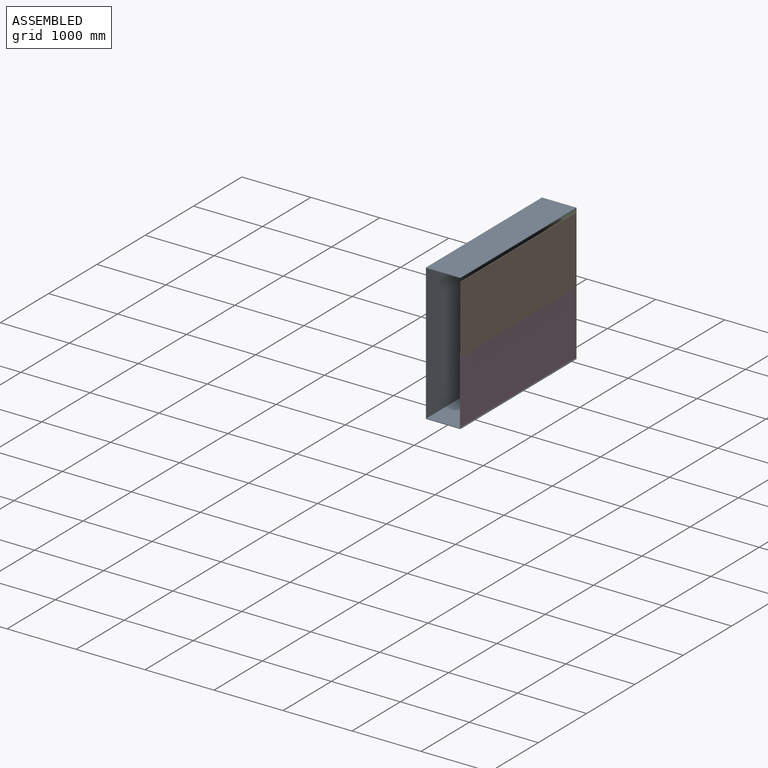
[diagram: assembled view]
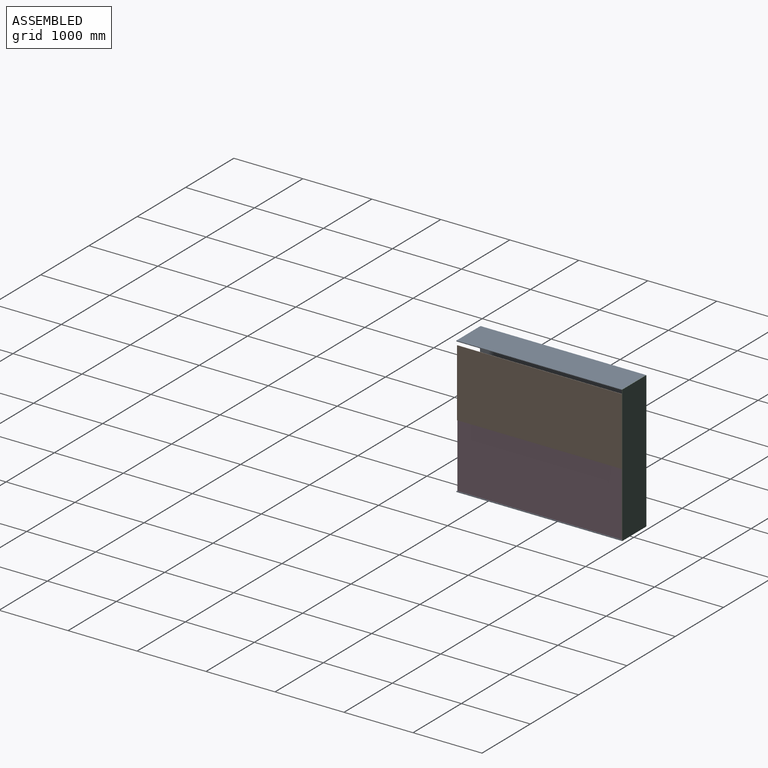
[diagram: assembled view, second angle]
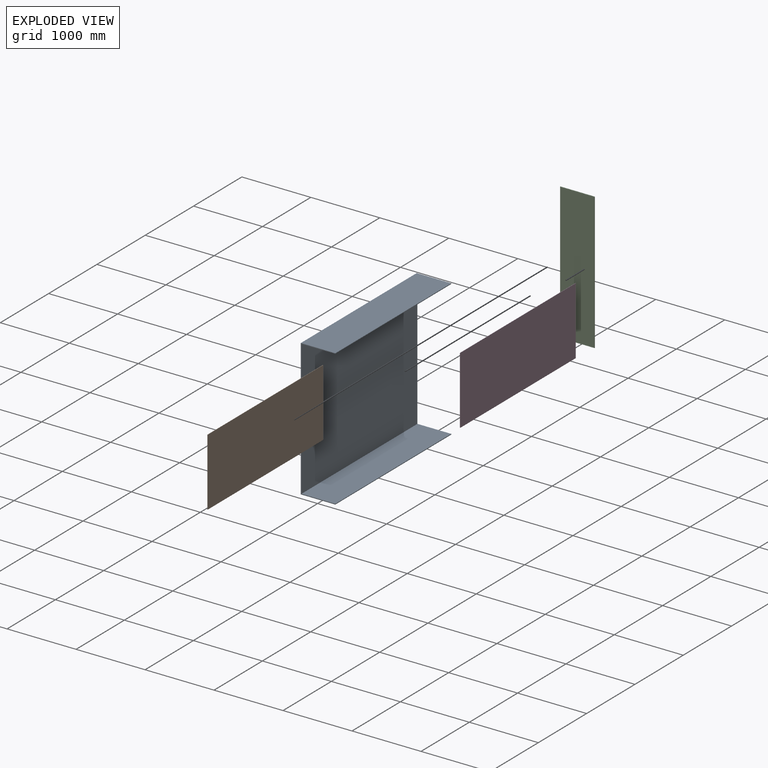
[diagram: exploded view]
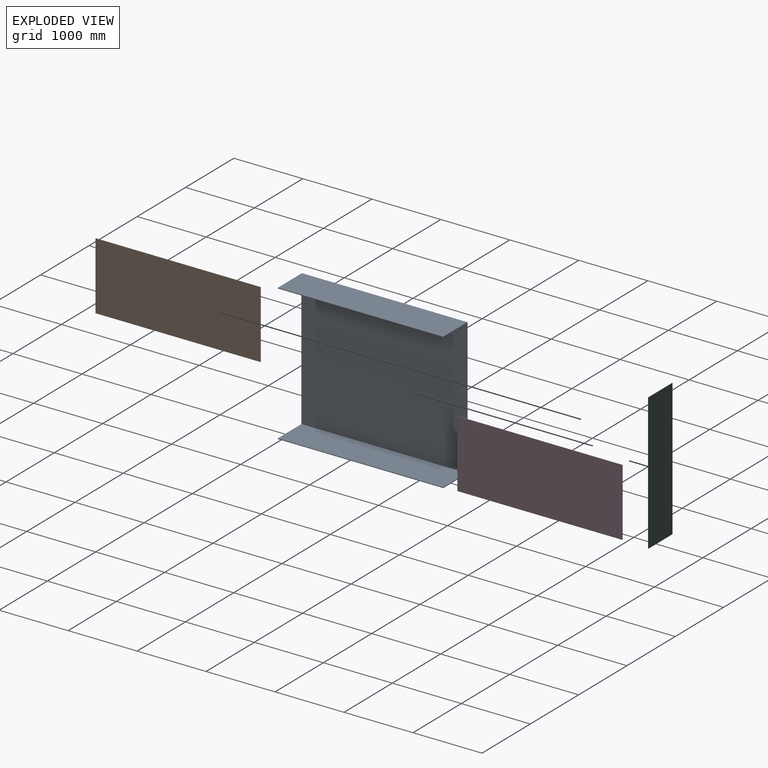
[diagram: exploded view, second angle]
ASSEMBLY  parts=4 mates=5
PART A: 18 faces, bbox 500x2403x1983 mm
  f0: plane 1983x500mm, normal (0,-1,0), area 10416mm2, adj f3,f4,f5,f6,f7,f11,f12,f16
  f1: plane 2400x1963mm, normal (1,0,0), area 4711200mm2, adj f2,f8,f9,f10
  f2: plane 2400x490mm, normal (0,0,-1), area 1176000mm2, adj f1,f3,f9,f10
  f3: plane 2403x10mm, normal (1,0,0), area 24009mm2, adj f0,f2,f4,f9,f10,f15,f16,f17
  f4: plane 2400x500mm, normal (0,0,1), area 1200000mm2, adj f0,f3,f5,f10
  f5: plane 2400x1983mm, normal (-1,0,0), area 4759200mm2, adj f0,f4,f6,f10
  f6: plane 2400x500mm, normal (0,0,-1), area 1200000mm2, adj f0,f5,f7,f10
  f7: plane 2403x10mm, normal (1,0,0), area 24009mm2, adj f0,f6,f8,f9,f10,f12,f13,f17
  f8: plane 2400x490mm, normal (0,0,1), area 1176000mm2, adj f1,f7,f9,f10
  f9: plane 1970x493.5mm, normal (0,-1,0), area 10325mm2, adj f1,f2,f3,f7,f8,f13,f14,f15
  f10: plane 1983x500mm, normal (0,1,0), area 29630mm2, adj f1,f2,f3,f4,f5,f6,f7,f8
  f11: plane 1976x3mm, normal (-1,0,0), area 5928mm2, adj f0,f12,f16,f17
  f12: plane 496.5x3mm, normal (0,0,-1), area 1489.5mm2, adj f0,f7,f11,f17
  f13: plane 493.5x3mm, normal (0,0,1), area 1480.5mm2, adj f7,f9,f14,f17
  f14: plane 1970x3mm, normal (1,0,0), area 5910mm2, adj f9,f13,f15,f17
  f15: plane 493.5x3mm, normal (0,0,-1), area 1480.5mm2, adj f3,f9,f14,f17
  f16: plane 496.5x3mm, normal (0,0,1), area 1489.5mm2, adj f0,f3,f11,f17
  f17: plane 1976x496.5mm, normal (0,-1,0), area 8889mm2, adj f3,f7,f11,f12,f13,f14,f15,f16
PART B: 10 faces, bbox 981.5x5x2393 mm
  f0: plane 981.5x1mm, normal (0,0,1), area 981.5mm2, adj f1,f3,f5,f8
  f1: plane 2393x5mm, normal (-1,0,0), area 11959mm2, adj f0,f2,f4,f5,f6,f7,f8,f9
  f2: plane 981.5x5mm, normal (0,0,-1), area 4907.5mm2, adj f1,f3,f5,f6
  f3: plane 2393x5mm, normal (1,0,0), area 11959mm2, adj f0,f2,f4,f5,f6,f7,f8,f9
  f4: plane 981.5x1mm, normal (0,0,1), area 981.5mm2, adj f1,f3,f6,f7
  f5: plane 2390x981.5mm, normal (0,-1,0), area 2345785mm2, adj f0,f1,f2,f3
  f6: plane 2390x981.5mm, normal (0,1,0), area 2345785mm2, adj f1,f2,f3,f4
  f7: plane 981.5x3mm, normal (0,1,0), area 2944.5mm2, adj f1,f3,f4,f9
  f8: plane 981.5x3mm, normal (0,-1,0), area 2944.5mm2, adj f0,f1,f3,f9
  f9: plane 981.5x3mm, normal (0,0,1), area 2944.5mm2, adj f1,f3,f7,f8
PART C: 24 faces, bbox 500x5x1983 mm
  f0: plane 1983x500mm, normal (0,-1,0), area 10416mm2, adj f2,f3,f4,f5,f13,f14,f15
  f1: plane 1970x1mm, normal (0,-1,0), area 1970mm2, adj f4,f16,f17,f18
  f2: plane 1983x5mm, normal (-1,0,0), area 9915mm2, adj f0,f3,f5,f6
  f3: plane 500x5mm, normal (0,0,-1), area 2500mm2, adj f0,f2,f4,f6
  f4: plane 1983x5mm, normal (1,0,0), area 9897mm2, adj f0,f1,f3,f5,f6,f13,f15,f16
  f5: plane 500x5mm, normal (0,0,1), area 2500mm2, adj f0,f2,f4,f6
  f6: plane 1983x500mm, normal (0,1,0), area 991500mm2, adj f2,f3,f4,f5
  f7: plane 1970x3mm, normal (-1,0,0), area 5910mm2, adj f8,f20,f21,f23
  f8: plane 484.5x3mm, normal (0,0,1), area 1453.5mm2, adj f7,f9,f21,f23
  f9: plane 1970x3mm, normal (1,0,0), area 5910mm2, adj f8,f20,f21,f23
  f10: plane 1970x3mm, normal (-1,0,0), area 5910mm2, adj f11,f19,f21,f22
  f11: plane 3x2mm, normal (0,0,1), area 6mm2, adj f10,f12,f21,f22
  f12: plane 1970x3mm, normal (1,0,0), area 5910mm2, adj f11,f19,f21,f22
  f13: plane 496.5x3mm, normal (0,0,-1), area 1489.5mm2, adj f0,f4,f14,f21
  f14: plane 1976x3mm, normal (1,0,0), area 5928mm2, adj f0,f13,f15,f21
  f15: plane 496.5x3mm, normal (0,0,1), area 1489.5mm2, adj f0,f4,f14,f21
  f16: plane 3x1mm, normal (0,0,-1), area 3mm2, adj f1,f4,f17,f21
  f17: plane 1970x3mm, normal (-1,0,0), area 5910mm2, adj f1,f16,f18,f21
  f18: plane 3x1mm, normal (0,0,1), area 3mm2, adj f1,f4,f17,f21
  f19: plane 3x2mm, normal (0,0,-1), area 6mm2, adj f10,f12,f21,f22
  f20: plane 484.5x3mm, normal (0,0,-1), area 1453.5mm2, adj f7,f9,f21,f23
  f21: plane 1976x496.5mm, normal (0,-1,0), area 20709mm2, adj f4,f7,f8,f9,f10,f11,f12,f13
  f22: plane 1970x2mm, normal (0,-1,0), area 3940mm2, adj f10,f11,f12,f19
  f23: plane 1970x484.5mm, normal (0,-1,0), area 954465mm2, adj f7,f8,f9,f20
PART D: same geometry as B
PLACE A rot(axis=(1,0,0),180deg) t=(-251.74,-2399.35,997.74)mm
PLACE B rot(axis=(-0.58,-0.58,-0.58),120deg) t=(248.25,-2389.35,-42.77)mm
PLACE C t=(-251.74,5.65,-985.26)mm fixed
PLACE D rot(axis=(-0.58,-0.58,-0.58),120deg) t=(240.25,-2389.35,-974.51)mm
MATE planar A.f17 <-> C.f21  axis (0,1,0) through (-164.05,3.65,6.24)mm
MATE planar C.f2 <-> A.f5  axis (-1,0,0) through (-251.74,3.15,6.24)mm
MATE planar C.f21 <-> D.f9  axis (0,-1,0) through (68.43,3.65,6.24)mm
MATE planar A.f4 <-> C.f3  axis (0,0,-1) through (-1.74,-1199.35,-985.26)mm
MATE planar B.f9 <-> C.f21  axis (0,1,0) through (245.75,3.65,447.98)mm
